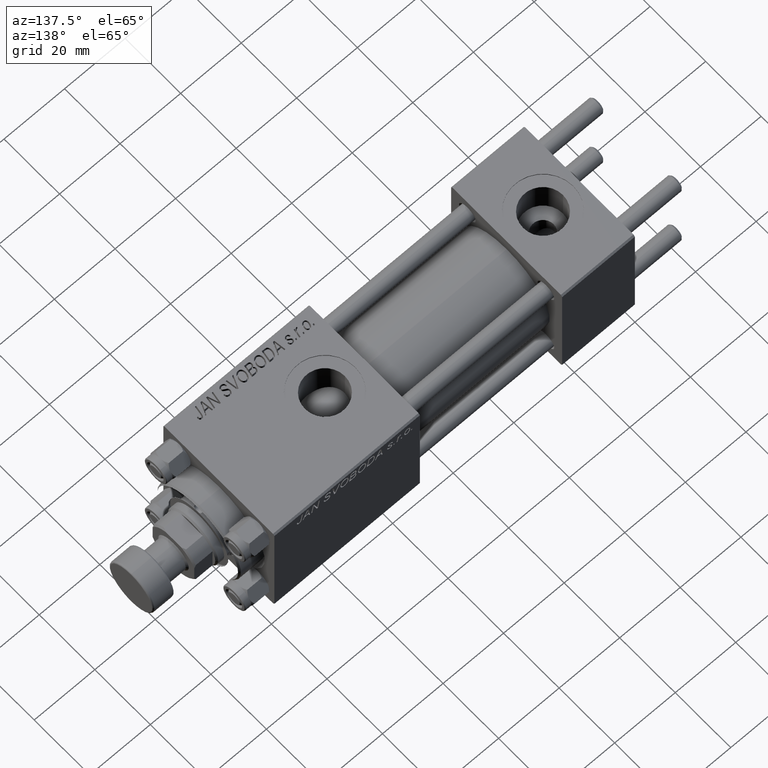
[diagram: clean part render]
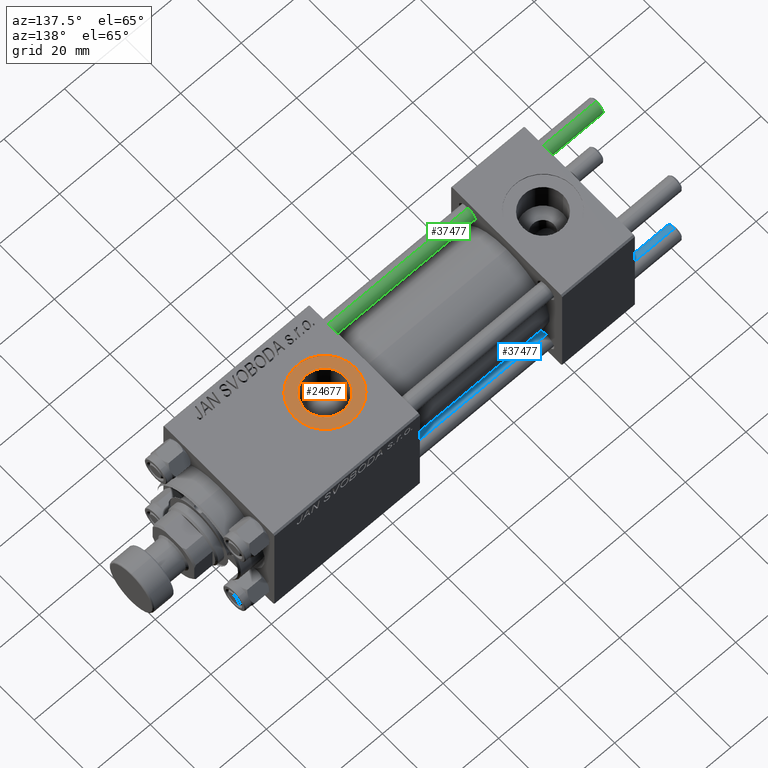
[diagram: same view with three faces highlighted in distinct colors, each labeled with its STEP entity id]
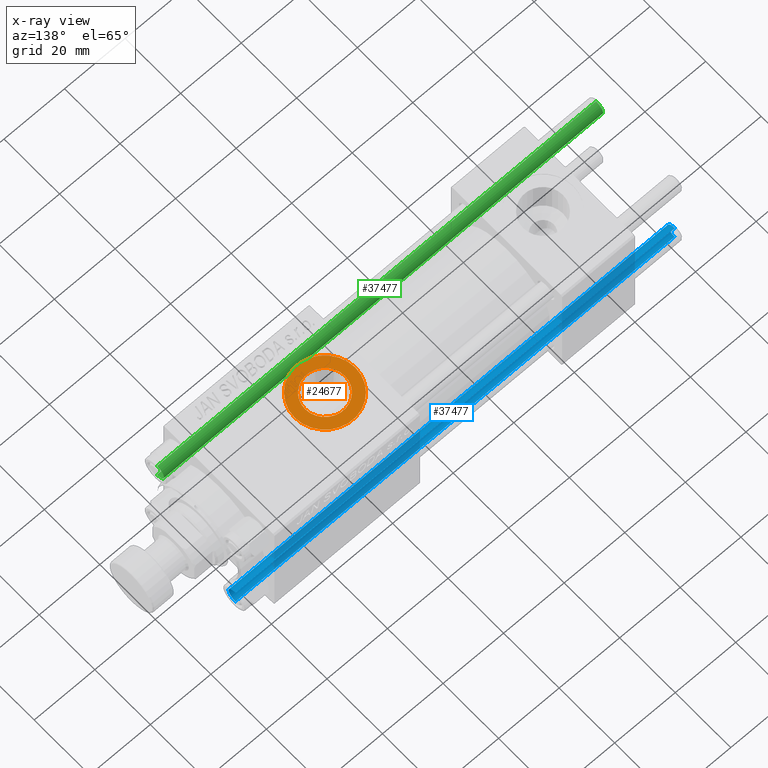
[diagram: x-ray of the same camera — body ghosted, the three highlighted faces saturated]
A machine part, auxiliary view with three faces highlighted in distinct colors.
The next image is the same camera in x-ray (body ghosted, the three faces saturated) — at least one of them is partly hidden behind the body in this view.
Their STEP definitions:

[orange] entity #24677 — the highlighted planar face has unit normal (0, 0, 1).
#4475 = EDGE_LOOP ( 'NONE', ( #23184, #6879 ) ) ;
#4811 = DIRECTION ( 'NONE',  ( 1.000000000000000000, 0.000000000000000000, 0.000000000000000000 ) ) ;
#5168 = CARTESIAN_POINT ( 'NONE',  ( 84.00000000000000000, -1.734723475976806897E-15, 19.80000000000000071 ) ) ;
#5500 = DIRECTION ( 'NONE',  ( 0.000000000000000000, 0.000000000000000000, 1.000000000000000000 ) ) ;
#6485 = PLANE ( 'NONE',  #38351 ) ;
#6754 = FACE_BOUND ( 'NONE', #42547, .T. ) ;
#6879 = ORIENTED_EDGE ( 'NONE', *, *, #34205, .T. ) ;
#7629 = ORIENTED_EDGE ( 'NONE', *, *, #48245, .T. ) ;
#7802 = CIRCLE ( 'NONE', #48092, 6.580000000001542837 ) ;
#8492 = CIRCLE ( 'NONE', #26122, 10.00000000000154898 ) ;
#11201 = FACE_OUTER_BOUND ( 'NONE', #4475, .T. ) ;
#14657 = CARTESIAN_POINT ( 'NONE',  ( 94.00000000000154898, -1.734723475976806897E-15, 19.80000000000000071 ) ) ;
#17028 = AXIS2_PLACEMENT_3D ( 'NONE', #5168, #48586, #24627 ) ;
#19202 = CARTESIAN_POINT ( 'NONE',  ( 77.41999999999846693, -1.734723475976806897E-15, 19.80000000000000071 ) ) ;
#20232 = ORIENTED_EDGE ( 'NONE', *, *, #39244, .T. ) ;
#21525 = DIRECTION ( 'NONE',  ( 1.000000000000000000, 0.000000000000000000, 0.000000000000000000 ) ) ;
#23184 = ORIENTED_EDGE ( 'NONE', *, *, #38722, .T. ) ;
#24627 = DIRECTION ( 'NONE',  ( 1.000000000000000000, 0.000000000000000000, 0.000000000000000000 ) ) ;
#24677 = ADVANCED_FACE ( 'NONE', ( #6754, #11201 ), #6485, .T. ) ;
#24785 = CARTESIAN_POINT ( 'NONE',  ( 84.00000000000000000, -1.734723475976806897E-15, 19.80000000000000071 ) ) ;
#26122 = AXIS2_PLACEMENT_3D ( 'NONE', #41518, #5500, #21525 ) ;
#26210 = DIRECTION ( 'NONE',  ( 1.000000000000000000, 0.000000000000000000, -0.000000000000000000 ) ) ;
#26468 = DIRECTION ( 'NONE',  ( 0.000000000000000000, 0.000000000000000000, 1.000000000000000000 ) ) ;
#27046 = DIRECTION ( 'NONE',  ( 0.000000000000000000, 0.000000000000000000, 1.000000000000000000 ) ) ;
#29551 = CARTESIAN_POINT ( 'NONE',  ( 73.99999999999845102, -5.100766768292640183E-16, 19.80000000000000071 ) ) ;
#30371 = VERTEX_POINT ( 'NONE', #14657 ) ;
#30915 = VERTEX_POINT ( 'NONE', #31915 ) ;
#31301 = AXIS2_PLACEMENT_3D ( 'NONE', #43609, #27046, #43093 ) ;
#31915 = CARTESIAN_POINT ( 'NONE',  ( 90.58000000000154728, -9.289058821376599092E-16, 19.80000000000000071 ) ) ;
#34205 = EDGE_CURVE ( 'NONE', #50671, #30371, #8492, .T. ) ;
#35146 = CARTESIAN_POINT ( 'NONE',  ( 84.00000000000000000, -1.734723475976806897E-15, 19.80000000000000071 ) ) ;
#36039 = VERTEX_POINT ( 'NONE', #19202 ) ;
#38351 = AXIS2_PLACEMENT_3D ( 'NONE', #35146, #26468, #26210 ) ;
#38722 = EDGE_CURVE ( 'NONE', #30371, #50671, #44747, .T. ) ;
#39244 = EDGE_CURVE ( 'NONE', #36039, #30915, #7802, .T. ) ;
#40826 = DIRECTION ( 'NONE',  ( -0.000000000000000000, -0.000000000000000000, -1.000000000000000000 ) ) ;
#41518 = CARTESIAN_POINT ( 'NONE',  ( 84.00000000000000000, -1.734723475976806897E-15, 19.80000000000000071 ) ) ;
#42547 = EDGE_LOOP ( 'NONE', ( #20232, #7629 ) ) ;
#43093 = DIRECTION ( 'NONE',  ( 1.000000000000000000, 0.000000000000000000, 0.000000000000000000 ) ) ;
#43609 = CARTESIAN_POINT ( 'NONE',  ( 84.00000000000000000, -1.734723475976806897E-15, 19.80000000000000071 ) ) ;
#44747 = CIRCLE ( 'NONE', #31301, 10.00000000000154898 ) ;
#47295 = CIRCLE ( 'NONE', #17028, 6.580000000001542837 ) ;
#48092 = AXIS2_PLACEMENT_3D ( 'NONE', #24785, #40826, #4811 ) ;
#48245 = EDGE_CURVE ( 'NONE', #30915, #36039, #47295, .T. ) ;
#48586 = DIRECTION ( 'NONE',  ( -0.000000000000000000, -0.000000000000000000, -1.000000000000000000 ) ) ;
#50671 = VERTEX_POINT ( 'NONE', #29551 ) ;

[blue] entity #37477 — the highlighted cylindrical surface (edge-blend (fillet) strip) has radius 2.5 mm, axis along (1, 0, -0).
#739 = CARTESIAN_POINT ( 'NONE',  ( -2.500000000000000000, 0.000000000000000000, 146.0000000000000000 ) ) ;
#1493 = DIRECTION ( 'NONE',  ( -0.000000000000000000, -0.000000000000000000, -1.000000000000000000 ) ) ;
#3015 = CARTESIAN_POINT ( 'NONE',  ( -2.500000000000000000, 0.000000000000000000, 0.5000000000000559552 ) ) ;
#3922 = VERTEX_POINT ( 'NONE', #38627 ) ;
#6718 = CIRCLE ( 'NONE', #36106, 2.500000000000000000 ) ;
#8681 = DIRECTION ( 'NONE',  ( -0.000000000000000000, -0.000000000000000000, 1.000000000000000000 ) ) ;
#9838 = CARTESIAN_POINT ( 'NONE',  ( -2.500000000000000000, 0.000000000000000000, 145.5000000000000284 ) ) ;
#11552 = CARTESIAN_POINT ( 'NONE',  ( 2.500000000000000000, 3.061616997868383141E-16, 146.0000000000000000 ) ) ;
#13831 = FACE_OUTER_BOUND ( 'NONE', #36480, .T. ) ;
#14526 = ORIENTED_EDGE ( 'NONE', *, *, #31752, .T. ) ;
#14961 = VECTOR ( 'NONE', #51561, 1000.000000000000000 ) ;
#15145 = AXIS2_PLACEMENT_3D ( 'NONE', #26726, #25948, #41997 ) ;
#15289 = VERTEX_POINT ( 'NONE', #9838 ) ;
#18480 = VECTOR ( 'NONE', #1493, 1000.000000000000000 ) ;
#20031 = ORIENTED_EDGE ( 'NONE', *, *, #35610, .T. ) ;
#20699 = LINE ( 'NONE', #739, #18480 ) ;
#20944 = CIRCLE ( 'NONE', #43676, 2.500000000000000000 ) ;
#22202 = CARTESIAN_POINT ( 'NONE',  ( 0.000000000000000000, 0.000000000000000000, 145.5000000000000284 ) ) ;
#25350 = ORIENTED_EDGE ( 'NONE', *, *, #28396, .F. ) ;
#25586 = ORIENTED_EDGE ( 'NONE', *, *, #36481, .T. ) ;
#25948 = DIRECTION ( 'NONE',  ( -0.000000000000000000, -0.000000000000000000, -1.000000000000000000 ) ) ;
#26672 = DIRECTION ( 'NONE',  ( 1.000000000000000000, 0.000000000000000000, 0.000000000000000000 ) ) ;
#26726 = CARTESIAN_POINT ( 'NONE',  ( 0.000000000000000000, 0.000000000000000000, 146.0000000000000000 ) ) ;
#28149 = DIRECTION ( 'NONE',  ( 1.000000000000000000, 0.000000000000000000, 0.000000000000000000 ) ) ;
#28396 = EDGE_CURVE ( 'NONE', #3922, #37611, #48394, .T. ) ;
#31752 = EDGE_CURVE ( 'NONE', #3922, #15289, #20944, .T. ) ;
#33003 = CARTESIAN_POINT ( 'NONE',  ( 2.500000000000000000, 3.061616997868383141E-16, 0.5000000000000559552 ) ) ;
#35610 = EDGE_CURVE ( 'NONE', #37788, #37611, #6718, .T. ) ;
#36106 = AXIS2_PLACEMENT_3D ( 'NONE', #47181, #8681, #28149 ) ;
#36480 = EDGE_LOOP ( 'NONE', ( #25350, #14526, #25586, #20031 ) ) ;
#36481 = EDGE_CURVE ( 'NONE', #15289, #37788, #20699, .T. ) ;
#37477 = ADVANCED_FACE ( 'NONE', ( #13831 ), #45953, .T. ) ;
#37611 = VERTEX_POINT ( 'NONE', #33003 ) ;
#37724 = DIRECTION ( 'NONE',  ( 0.000000000000000000, 0.000000000000000000, -1.000000000000000000 ) ) ;
#37788 = VERTEX_POINT ( 'NONE', #3015 ) ;
#38627 = CARTESIAN_POINT ( 'NONE',  ( 2.500000000000000000, 3.061616997868383141E-16, 145.5000000000000284 ) ) ;
#41997 = DIRECTION ( 'NONE',  ( -1.000000000000000000, 0.000000000000000000, 0.000000000000000000 ) ) ;
#43676 = AXIS2_PLACEMENT_3D ( 'NONE', #22202, #37724, #26672 ) ;
#45953 = CYLINDRICAL_SURFACE ( 'NONE', #15145, 2.500000000000000000 ) ;
#47181 = CARTESIAN_POINT ( 'NONE',  ( 0.000000000000000000, 0.000000000000000000, 0.5000000000000559552 ) ) ;
#48394 = LINE ( 'NONE', #11552, #14961 ) ;
#51561 = DIRECTION ( 'NONE',  ( -0.000000000000000000, -0.000000000000000000, -1.000000000000000000 ) ) ;

[green] entity #37477 — the highlighted cylindrical surface (edge-blend (fillet) strip) has radius 2.5 mm, axis along (1, -0, 0).
#739 = CARTESIAN_POINT ( 'NONE',  ( -2.500000000000000000, 0.000000000000000000, 146.0000000000000000 ) ) ;
#1493 = DIRECTION ( 'NONE',  ( -0.000000000000000000, -0.000000000000000000, -1.000000000000000000 ) ) ;
#3015 = CARTESIAN_POINT ( 'NONE',  ( -2.500000000000000000, 0.000000000000000000, 0.5000000000000559552 ) ) ;
#3922 = VERTEX_POINT ( 'NONE', #38627 ) ;
#6718 = CIRCLE ( 'NONE', #36106, 2.500000000000000000 ) ;
#8681 = DIRECTION ( 'NONE',  ( -0.000000000000000000, -0.000000000000000000, 1.000000000000000000 ) ) ;
#9838 = CARTESIAN_POINT ( 'NONE',  ( -2.500000000000000000, 0.000000000000000000, 145.5000000000000284 ) ) ;
#11552 = CARTESIAN_POINT ( 'NONE',  ( 2.500000000000000000, 3.061616997868383141E-16, 146.0000000000000000 ) ) ;
#13831 = FACE_OUTER_BOUND ( 'NONE', #36480, .T. ) ;
#14526 = ORIENTED_EDGE ( 'NONE', *, *, #31752, .T. ) ;
#14961 = VECTOR ( 'NONE', #51561, 1000.000000000000000 ) ;
#15145 = AXIS2_PLACEMENT_3D ( 'NONE', #26726, #25948, #41997 ) ;
#15289 = VERTEX_POINT ( 'NONE', #9838 ) ;
#18480 = VECTOR ( 'NONE', #1493, 1000.000000000000000 ) ;
#20031 = ORIENTED_EDGE ( 'NONE', *, *, #35610, .T. ) ;
#20699 = LINE ( 'NONE', #739, #18480 ) ;
#20944 = CIRCLE ( 'NONE', #43676, 2.500000000000000000 ) ;
#22202 = CARTESIAN_POINT ( 'NONE',  ( 0.000000000000000000, 0.000000000000000000, 145.5000000000000284 ) ) ;
#25350 = ORIENTED_EDGE ( 'NONE', *, *, #28396, .F. ) ;
#25586 = ORIENTED_EDGE ( 'NONE', *, *, #36481, .T. ) ;
#25948 = DIRECTION ( 'NONE',  ( -0.000000000000000000, -0.000000000000000000, -1.000000000000000000 ) ) ;
#26672 = DIRECTION ( 'NONE',  ( 1.000000000000000000, 0.000000000000000000, 0.000000000000000000 ) ) ;
#26726 = CARTESIAN_POINT ( 'NONE',  ( 0.000000000000000000, 0.000000000000000000, 146.0000000000000000 ) ) ;
#28149 = DIRECTION ( 'NONE',  ( 1.000000000000000000, 0.000000000000000000, 0.000000000000000000 ) ) ;
#28396 = EDGE_CURVE ( 'NONE', #3922, #37611, #48394, .T. ) ;
#31752 = EDGE_CURVE ( 'NONE', #3922, #15289, #20944, .T. ) ;
#33003 = CARTESIAN_POINT ( 'NONE',  ( 2.500000000000000000, 3.061616997868383141E-16, 0.5000000000000559552 ) ) ;
#35610 = EDGE_CURVE ( 'NONE', #37788, #37611, #6718, .T. ) ;
#36106 = AXIS2_PLACEMENT_3D ( 'NONE', #47181, #8681, #28149 ) ;
#36480 = EDGE_LOOP ( 'NONE', ( #25350, #14526, #25586, #20031 ) ) ;
#36481 = EDGE_CURVE ( 'NONE', #15289, #37788, #20699, .T. ) ;
#37477 = ADVANCED_FACE ( 'NONE', ( #13831 ), #45953, .T. ) ;
#37611 = VERTEX_POINT ( 'NONE', #33003 ) ;
#37724 = DIRECTION ( 'NONE',  ( 0.000000000000000000, 0.000000000000000000, -1.000000000000000000 ) ) ;
#37788 = VERTEX_POINT ( 'NONE', #3015 ) ;
#38627 = CARTESIAN_POINT ( 'NONE',  ( 2.500000000000000000, 3.061616997868383141E-16, 145.5000000000000284 ) ) ;
#41997 = DIRECTION ( 'NONE',  ( -1.000000000000000000, 0.000000000000000000, 0.000000000000000000 ) ) ;
#43676 = AXIS2_PLACEMENT_3D ( 'NONE', #22202, #37724, #26672 ) ;
#45953 = CYLINDRICAL_SURFACE ( 'NONE', #15145, 2.500000000000000000 ) ;
#47181 = CARTESIAN_POINT ( 'NONE',  ( 0.000000000000000000, 0.000000000000000000, 0.5000000000000559552 ) ) ;
#48394 = LINE ( 'NONE', #11552, #14961 ) ;
#51561 = DIRECTION ( 'NONE',  ( -0.000000000000000000, -0.000000000000000000, -1.000000000000000000 ) ) ;